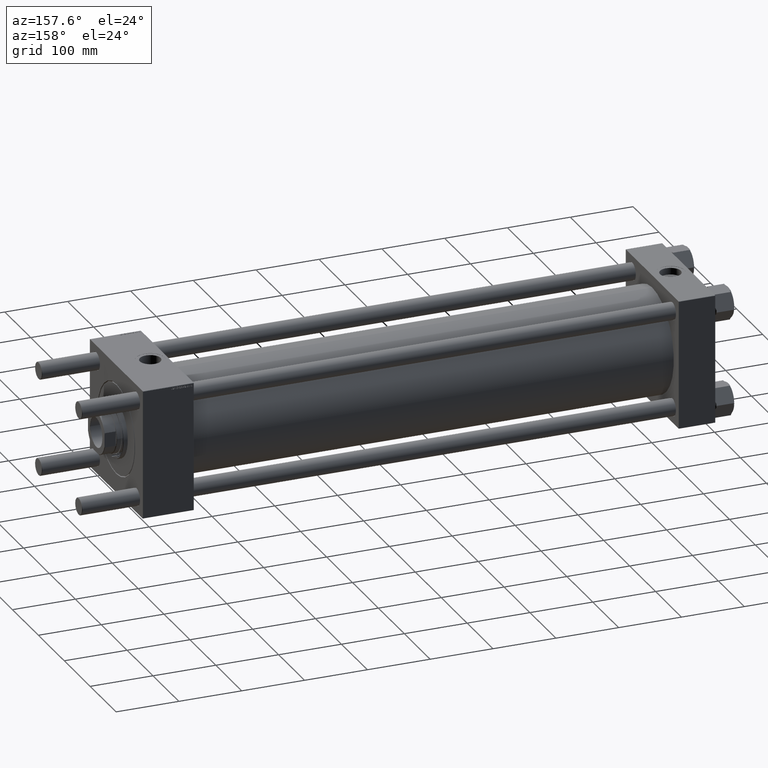
[diagram: clean part render]
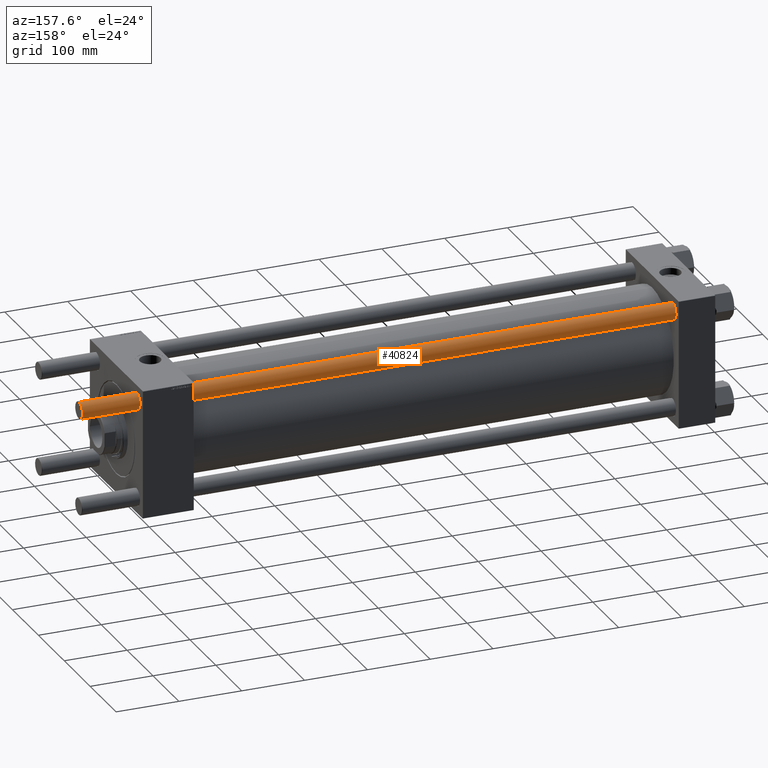
[diagram: same view with one face highlighted and labeled with its STEP entity id]
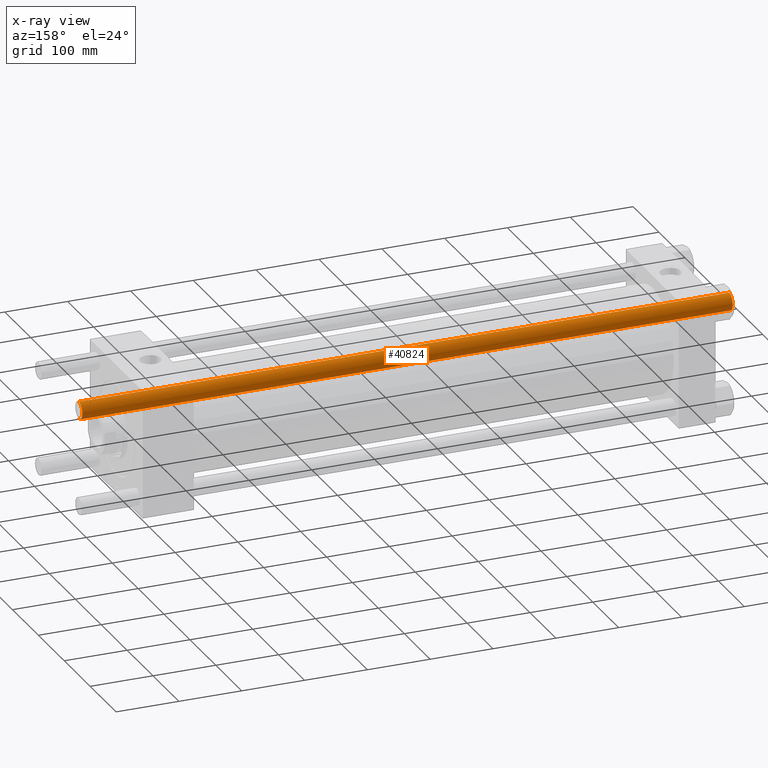
[diagram: x-ray of the same camera — body ghosted, the highlighted face saturated]
A machine part, auxiliary view. The second image highlights one B-rep face of the part: STEP entity #40824.
The next image is the same camera in x-ray: the body ghosted, the highlighted face saturated — about 0% of this face is hidden behind the body in this view.
In plain terms, the highlighted cylindrical surface (edge-blend (fillet) strip) has radius 13.5 mm, axis along (1, -0, -0).
Its self-contained STEP definition (entity closure, byte-faithful):
#1089 = DIRECTION ( 'NONE',  ( -1.000000000000000000, 0.000000000000000000, 0.000000000000000000 ) ) ;
#2330 = VERTEX_POINT ( 'NONE', #20579 ) ;
#3781 = CARTESIAN_POINT ( 'NONE',  ( 13.50000000000000000, 1.653273178848926867E-15, 1036.000000000000000 ) ) ;
#4374 = CARTESIAN_POINT ( 'NONE',  ( 13.50000000000000000, 1.653273178848926867E-15, 0.4999999999999449329 ) ) ;
#5302 = ORIENTED_EDGE ( 'NONE', *, *, #47478, .T. ) ;
#5726 = CARTESIAN_POINT ( 'NONE',  ( -13.50000000000000000, 0.000000000000000000, 1036.000000000000000 ) ) ;
#8946 = DIRECTION ( 'NONE',  ( 1.000000000000000000, 0.000000000000000000, 0.000000000000000000 ) ) ;
#10867 = ORIENTED_EDGE ( 'NONE', *, *, #53944, .T. ) ;
#12780 = LINE ( 'NONE', #3781, #36183 ) ;
#14657 = CARTESIAN_POINT ( 'NONE',  ( 13.50000000000000000, 1.653273178848926867E-15, 1035.500000000000227 ) ) ;
#16008 = VERTEX_POINT ( 'NONE', #4374 ) ;
#16558 = VERTEX_POINT ( 'NONE', #54001 ) ;
#18503 = DIRECTION ( 'NONE',  ( -0.000000000000000000, -0.000000000000000000, -1.000000000000000000 ) ) ;
#19356 = DIRECTION ( 'NONE',  ( 0.000000000000000000, 0.000000000000000000, -1.000000000000000000 ) ) ;
#20473 = AXIS2_PLACEMENT_3D ( 'NONE', #23405, #19356, #49819 ) ;
#20579 = CARTESIAN_POINT ( 'NONE',  ( -13.50000000000000000, 0.000000000000000000, 1035.500000000000227 ) ) ;
#21334 = AXIS2_PLACEMENT_3D ( 'NONE', #31866, #35640, #8946 ) ;
#21849 = ORIENTED_EDGE ( 'NONE', *, *, #45920, .F. ) ;
#23405 = CARTESIAN_POINT ( 'NONE',  ( 0.000000000000000000, 0.000000000000000000, 1035.500000000000227 ) ) ;
#26922 = CYLINDRICAL_SURFACE ( 'NONE', #48941, 13.50000000000000000 ) ;
#28636 = LINE ( 'NONE', #5726, #37963 ) ;
#31866 = CARTESIAN_POINT ( 'NONE',  ( 0.000000000000000000, 0.000000000000000000, 0.4999999999999449329 ) ) ;
#32996 = DIRECTION ( 'NONE',  ( -0.000000000000000000, -0.000000000000000000, -1.000000000000000000 ) ) ;
#34394 = CIRCLE ( 'NONE', #20473, 13.50000000000000000 ) ;
#35640 = DIRECTION ( 'NONE',  ( -0.000000000000000000, -0.000000000000000000, 1.000000000000000000 ) ) ;
#36183 = VECTOR ( 'NONE', #49331, 1000.000000000000000 ) ;
#37963 = VECTOR ( 'NONE', #32996, 1000.000000000000000 ) ;
#40551 = CARTESIAN_POINT ( 'NONE',  ( 0.000000000000000000, 0.000000000000000000, 1036.000000000000000 ) ) ;
#40824 = ADVANCED_FACE ( 'NONE', ( #40845 ), #26922, .T. ) ;
#40845 = FACE_OUTER_BOUND ( 'NONE', #47603, .T. ) ;
#41725 = CIRCLE ( 'NONE', #21334, 13.50000000000000000 ) ;
#45920 = EDGE_CURVE ( 'NONE', #2330, #16558, #28636, .T. ) ;
#46769 = EDGE_CURVE ( 'NONE', #16008, #16558, #41725, .T. ) ;
#47033 = VERTEX_POINT ( 'NONE', #14657 ) ;
#47478 = EDGE_CURVE ( 'NONE', #47033, #16008, #12780, .T. ) ;
#47603 = EDGE_LOOP ( 'NONE', ( #10867, #5302, #55839, #21849 ) ) ;
#48941 = AXIS2_PLACEMENT_3D ( 'NONE', #40551, #18503, #1089 ) ;
#49331 = DIRECTION ( 'NONE',  ( -0.000000000000000000, -0.000000000000000000, -1.000000000000000000 ) ) ;
#49819 = DIRECTION ( 'NONE',  ( 1.000000000000000000, 0.000000000000000000, 0.000000000000000000 ) ) ;
#53944 = EDGE_CURVE ( 'NONE', #2330, #47033, #34394, .T. ) ;
#54001 = CARTESIAN_POINT ( 'NONE',  ( -13.50000000000000000, 0.000000000000000000, 0.4999999999999449329 ) ) ;
#55839 = ORIENTED_EDGE ( 'NONE', *, *, #46769, .T. ) ;